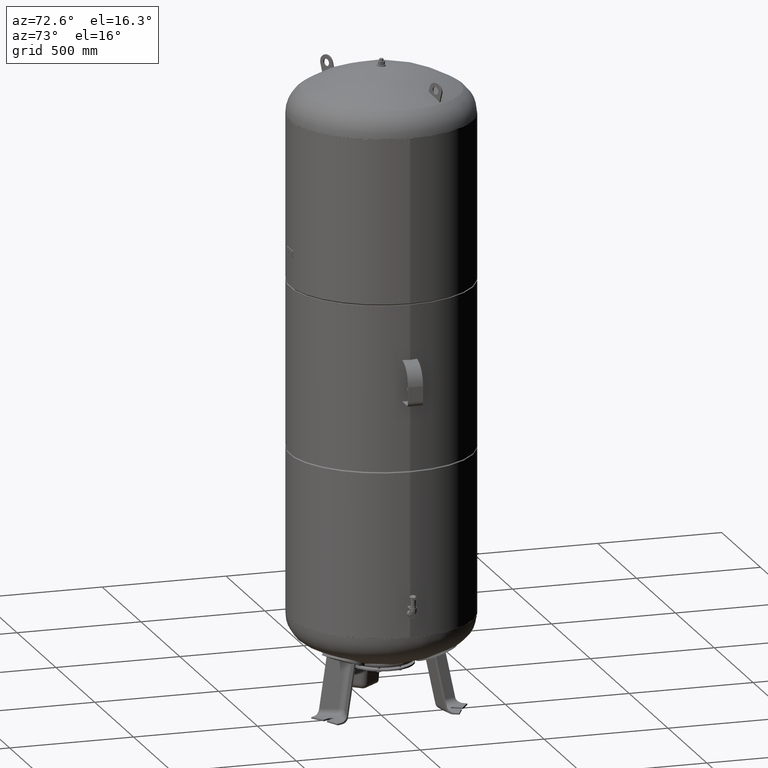
[diagram: clean part render]
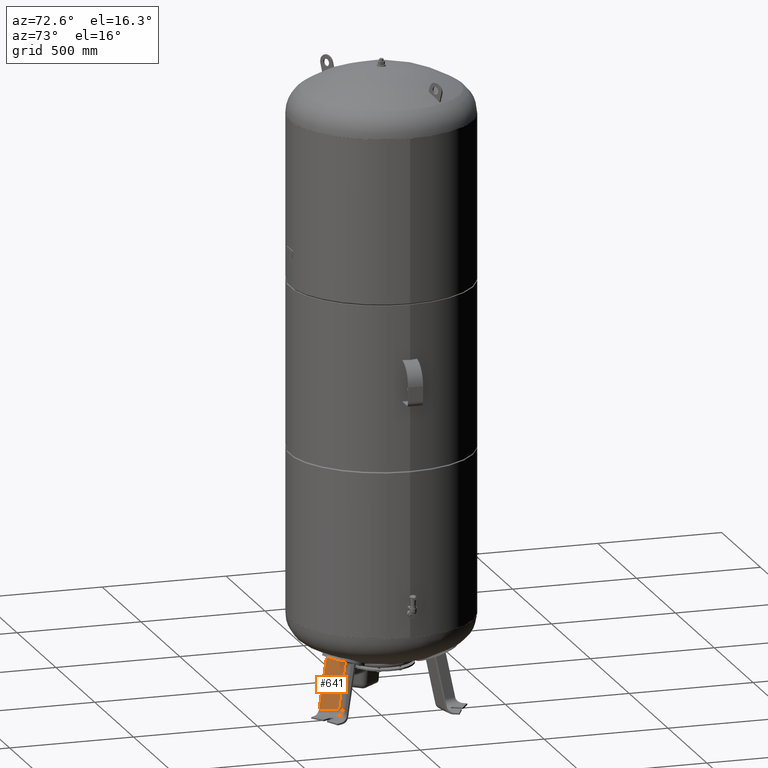
[diagram: same view with one face highlighted and labeled with its STEP entity id]
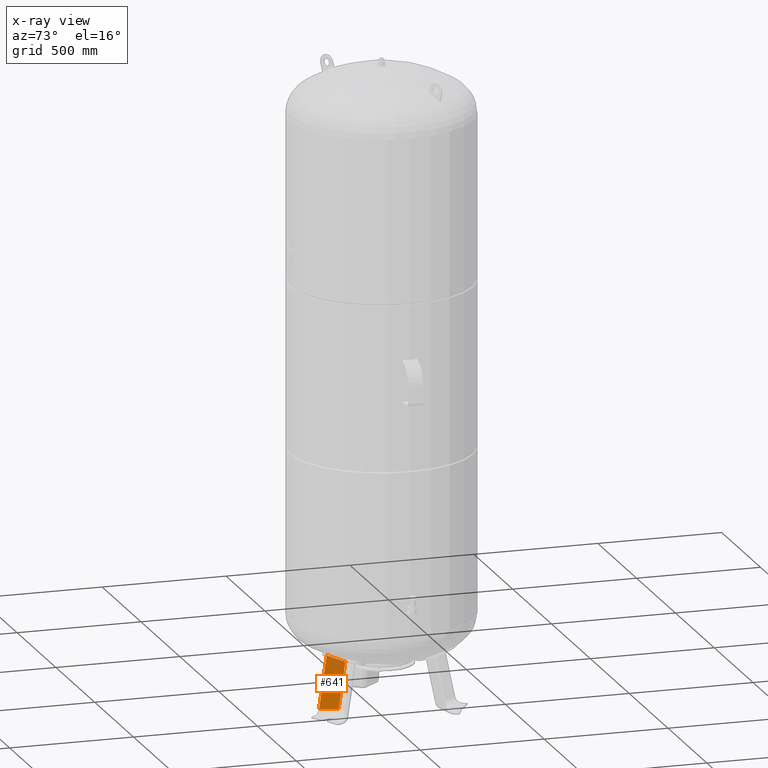
[diagram: x-ray of the same camera — body ghosted, the highlighted face saturated]
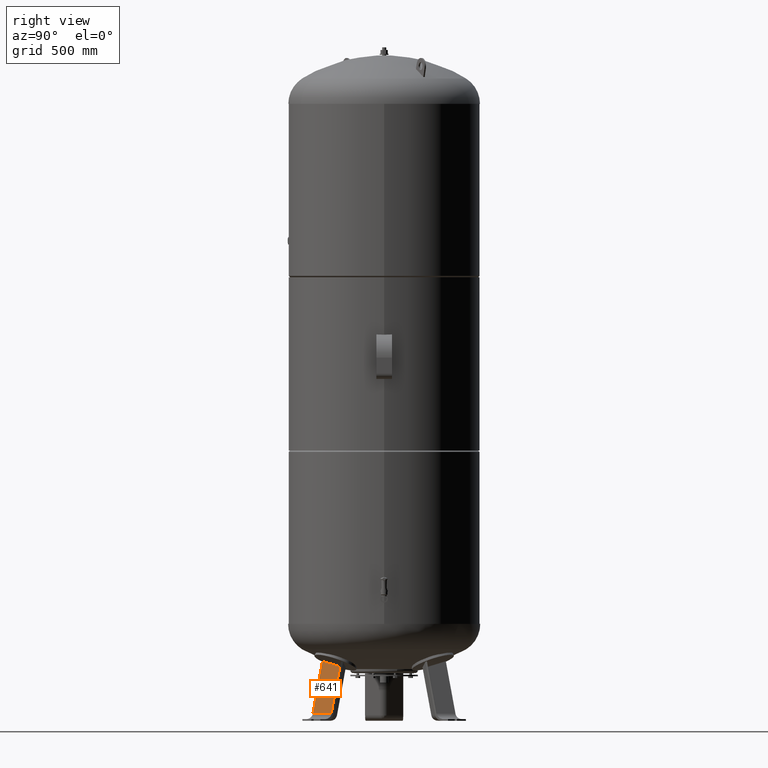
[diagram: same view with one face highlighted and labeled with its STEP entity id]
A machine part, auxiliary view. The second image highlights one B-rep face of the part: STEP entity #641.
The next image is the same camera in x-ray: the body ghosted, the highlighted face saturated — about 0% of this face is hidden behind the body in this view.
A second angle (right view) of the same face is appended — the face is thin or edge-on in the first view.
In plain terms, the highlighted planar face has unit normal (0.9325, -0.3243, 0.1588).
Its self-contained STEP definition (entity closure, byte-faithful):
#271=CARTESIAN_POINT('',(99.087779953756737,-203.897970942220750,27.029948423057292));
#272=VERTEX_POINT('',#271);
#344=CARTESIAN_POINT('',(79.715770836888311,-170.344666907117190,209.306223167677190));
#345=VERTEX_POINT('',#344);
#426=CARTESIAN_POINT('',(52.586239383479892,-236.757770730876760,233.000000000000030));
#427=VERTEX_POINT('',#426);
#435=CARTESIAN_POINT('',(79.715770836888311,-170.344666907117190,209.306223167677190));
#436=CARTESIAN_POINT('',(78.911315232764352,-172.361756306383140,209.911227339780880));
#437=CARTESIAN_POINT('',(78.104589287404139,-174.379511752188250,210.528203562929860));
#438=CARTESIAN_POINT('',(74.566467202668449,-183.208078527320790,213.276729921399890));
#439=CARTESIAN_POINT('',(71.812748058212549,-190.025567566105420,215.525731482895940));
#440=CARTESIAN_POINT('',(63.620194625736019,-210.166153264246650,222.506751583386570));
#441=CARTESIAN_POINT('',(58.125701223915669,-223.492076462663420,227.559845947390160));
#442=CARTESIAN_POINT('',(52.586239383479892,-236.757770730876760,233.000000000000030));
#443=B_SPLINE_CURVE_WITH_KNOTS('',3,(#435,#436,#437,#438,#439,#440,#441,#442),.UNSPECIFIED.,.F.,.U.,(4,2,2,4),(5.937335443723129,6.588195328792665,8.784260438390220,13.073486937020286),.UNSPECIFIED.);
#444=EDGE_CURVE('',#345,#427,#443,.T.);
#599=CARTESIAN_POINT('',(79.715770836888311,-170.344666907117190,209.306223167677190));
#600=DIRECTION('',(0.103955845408880,-0.180056805991956,-0.978147600733805));
#601=VECTOR('',#600,186.348435152196260);
#602=LINE('',#599,#601);
#603=EDGE_CURVE('',#345,#272,#602,.T.);
#618=CARTESIAN_POINT('',(116.163335654754930,-201.200799330712980,-67.735293817669458));
#619=DIRECTION('',(0.932535537409927,-0.324282864533177,0.158802063077708));
#620=DIRECTION('',(-0.103955845408880,0.180056805991956,0.978147600733806));
#621=AXIS2_PLACEMENT_3D('',#618,#619,#620);
#622=PLANE('',#621);
#623=CARTESIAN_POINT('',(74.476382368576012,-274.672610566010690,27.029948423057292));
#624=VERTEX_POINT('',#623);
#625=CARTESIAN_POINT('',(74.476382368576012,-274.672610566010690,27.029948423057292));
#626=DIRECTION('',(-0.103955845408880,0.180056805991956,0.978147600733805));
#627=VECTOR('',#626,210.571545053552460);
#628=LINE('',#625,#627);
#629=EDGE_CURVE('',#624,#427,#628,.T.);
#630=ORIENTED_EDGE('',*,*,#629,.F.);
#631=CARTESIAN_POINT('',(99.087779953756737,-203.897970942220750,27.029948423057292));
#632=DIRECTION('',(-0.328450760190053,-0.944521094592692,0.0));
#633=VECTOR('',#632,74.931772333057609);
#634=LINE('',#631,#633);
#635=EDGE_CURVE('',#272,#624,#634,.T.);
#636=ORIENTED_EDGE('',*,*,#635,.F.);
#637=ORIENTED_EDGE('',*,*,#603,.F.);
#638=ORIENTED_EDGE('',*,*,#444,.T.);
#639=EDGE_LOOP('',(#630,#636,#637,#638));
#640=FACE_OUTER_BOUND('',#639,.T.);
#641=ADVANCED_FACE('',(#640),#622,.T.);